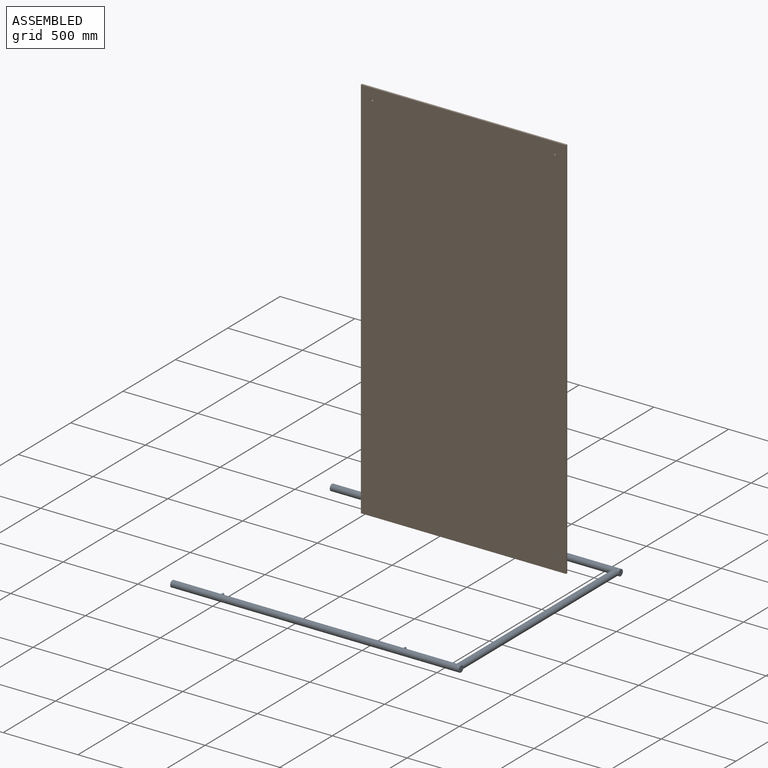
[diagram: assembled view]
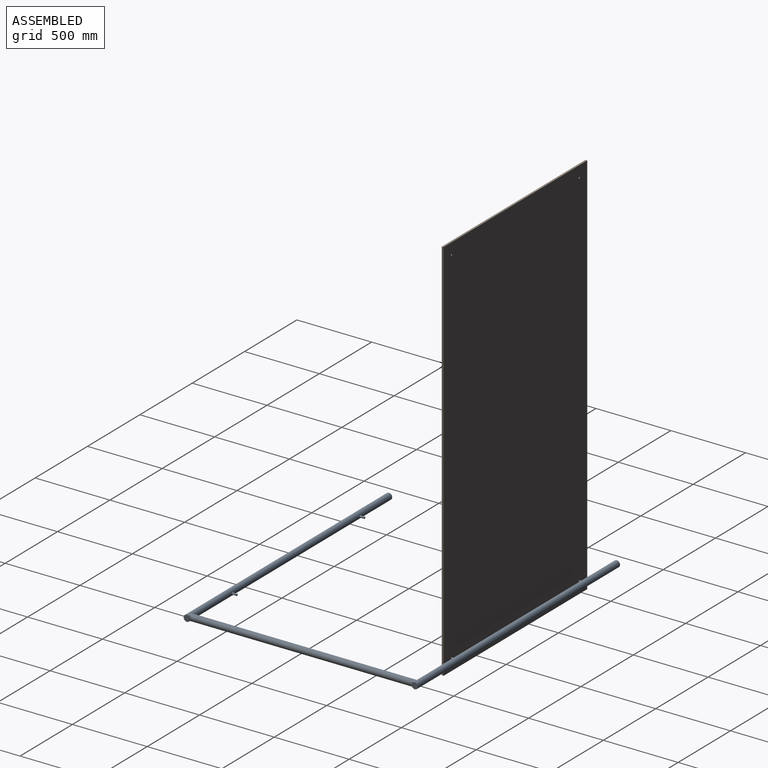
[diagram: assembled view, second angle]
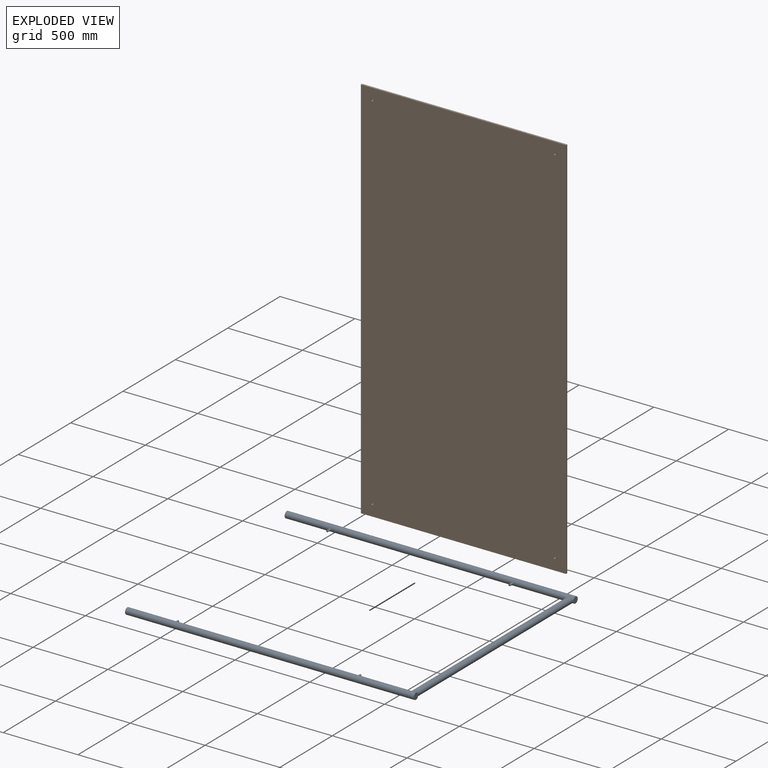
[diagram: exploded view]
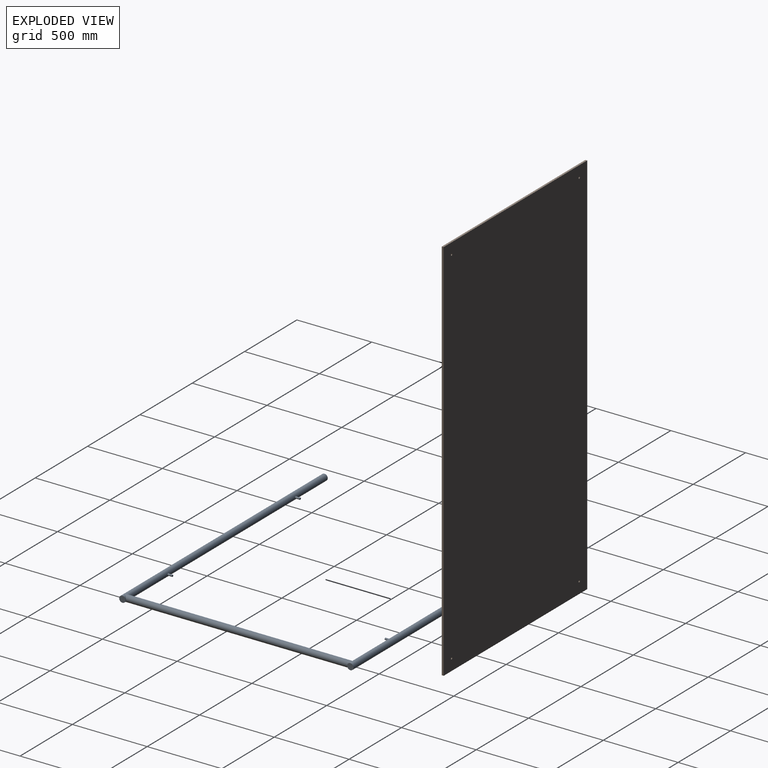
[diagram: exploded view, second angle]
ASSEMBLY  parts=2 mates=3
PART A: 15 faces, bbox 1566.9x42.9x1930.4 mm
  f0: cylinder r=21.46mm len=1930.4mm, axis (0,0,-1), area 258226.8mm2, adj f1,f2,f3,f7,f9
  f1: plane 42.93x42.93mm, normal (0,0,1), area 1447.2mm2, adj f0
  f2: plane 42.93x42.93mm, normal (0,0,-1), area 1447.2mm2, adj f0
  f3: cylinder r=21.46mm len=1524mm, axis (-1,0,0), area 201835.3mm2, adj f0,f4
  f4: cylinder r=21.46mm len=1930.4mm, axis (0,0,-1), area 258227.5mm2, adj f3,f5,f6,f11,f13
  f5: plane 42.93x42.93mm, normal (0,0,1), area 1447.2mm2, adj f4
  f6: plane 42.93x42.93mm, normal (0,0,-1), area 1447.2mm2, adj f4
  f7: cylinder r=6.35mm len=30.3mm, axis (-1,0,0), area 1189.6mm2, adj f0,f8
  f8: plane 12.7x12.7mm, normal (1,0,0), area 126.7mm2, adj f7
  f9: cylinder r=6.35mm len=30.3mm, axis (-1,0,0), area 1189.6mm2, adj f0,f10
  f10: plane 12.7x12.7mm, normal (1,0,0), area 126.7mm2, adj f9
  f11: cylinder r=6.35mm len=30.3mm, axis (1,0,0), area 1189.6mm2, adj f4,f12
  f12: plane 12.7x12.7mm, normal (-1,0,0), area 126.7mm2, adj f11
  f13: cylinder r=6.35mm len=30.3mm, axis (1,0,0), area 1189.6mm2, adj f4,f14
  f14: plane 12.7x12.7mm, normal (-1,0,0), area 126.7mm2, adj f13
PART B: 10 faces, bbox 2590.8x12.7x1371.6 mm
  f0: plane 2590.8x12.7mm, normal (0,0,1), area 32903.2mm2, adj f1,f3,f4,f5
  f1: plane 1371.6x12.7mm, normal (-1,0,0), area 17419.3mm2, adj f0,f2,f4,f5
  f2: plane 2590.8x12.7mm, normal (0,0,-1), area 32903.2mm2, adj f1,f3,f4,f5
  f3: plane 1371.6x12.7mm, normal (1,0,0), area 17419.3mm2, adj f0,f2,f4,f5
  f4: plane 2590.8x1371.6mm, normal (0,-1,0), area 3553034.6mm2, adj f0,f1,f2,f3,f6,f7,f8,f9
  f5: plane 2590.8x1371.6mm, normal (0,1,0), area 3553034.6mm2, adj f0,f1,f2,f3,f6,f7,f8,f9
  f6: cylinder r=6.35mm len=12.7mm, axis (0,-1,0), area 506.7mm2, adj f4,f5
  f7: cylinder r=6.35mm len=12.7mm, axis (0,-1,0), area 506.7mm2, adj f4,f5
  f8: cylinder r=6.35mm len=12.7mm, axis (0,-1,0), area 506.7mm2, adj f4,f5
  f9: cylinder r=6.35mm len=12.7mm, axis (0,-1,0), area 506.7mm2, adj f4,f5
PLACE A rot(axis=(-0.58,0.58,-0.58),120deg) t=(-188.21,2408.74,-2385.23)mm
PLACE B rot(axis=(0,1,0),90deg) t=(1136.53,2370.64,-1174.95)mm
MATE planar B.f4 <-> A.f9  axis (0,-1,0) through (726.19,2357.94,-1166.03)mm
MATE cylindrical A.f9 <-> B.f6  axis (0,-1,0) through (1335.79,2357.94,-2385.23)mm
MATE cylindrical A.f7 <-> A.f7  axis (0,-1,0) through (116.59,2357.94,-2385.23)mm
